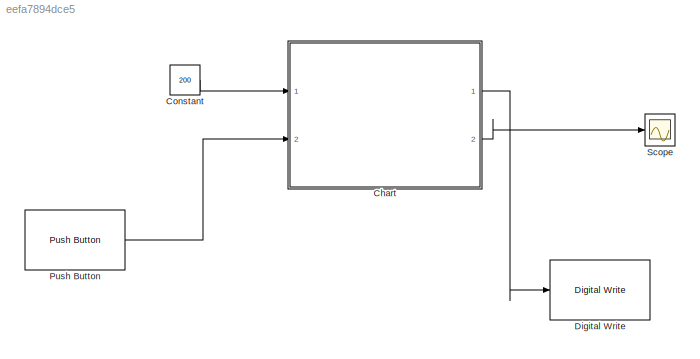
MODEL slx_eefa7894dce5
KIND model
CONFIG AbsTol = auto
CONFIG EnableMultiTasking = on
CONFIG FixedStep = 1e-3
CONFIG MaxStep = auto
CONFIG MinStep = auto
CONFIG RelTol = 1e-3
CONFIG SampleTimeConstraint = Unconstrained
CONFIG Solver = FixedStepAuto
CONFIG SolverName = FixedStepAuto
CONFIG StartTime = 0.0
CONFIG StopTime = 10.0
WORKSPACE source: mxarray member
WORKSPACE PWM_duty_cycle = 5
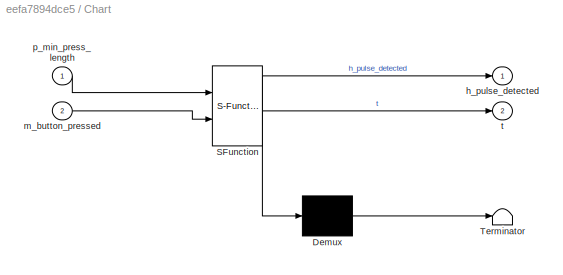
BLOCK [SubSystem] Chart
  ErrorFcn = Stateflow.Translate.translate
  PermitHierarchicalResolution = ExplicitOnly
  Ports = [2, 2]
  RequestExecContextInheritance = off
  SFBlockType = Chart
  TreatAsAtomicUnit = on
BLOCK [Demux] Chart/ Demux 
  Outputs = 1
  Ports = [1, 1]
BLOCK [S-Function] Chart/ SFunction 
  EnableBusSupport = on
  FunctionName = sf_sfun
  PortCounts = [2 3]
  Ports = [2, 3]
  SFcnIsStateOwnerBlock = off
  SFunctionDeploymentMode = off
  Tag = Stateflow S-Function 3
BLOCK [Terminator] Chart/ Terminator 
BLOCK [Outport] Chart/h_pulse_detected
BLOCK [Inport] Chart/m_button_pressed
  Port = 2
BLOCK [Inport] Chart/p_min_press_length
BLOCK [Outport] Chart/t
  Port = 2
BLOCK [Constant] Constant
  Value = 200
BLOCK [Reference] Digital Write  REF=frdmk64flib/Digital Write
  Ports = [1]
  SourceBlock = frdmk64flib/Digital Write
  SourceProductBaseCode = EC_FRDM_K64F
  SourceType = freedomk64f.DigitalWrite
BLOCK [Reference] Push Button  REF=frdmk64flib/Push Button
  Ports = [0, 1]
  SourceBlock = frdmk64flib/Push Button
  SourceProductBaseCode = EC_FRDM_K64F
  SourceType = freedomk64f.PushButton
BLOCK [Scope] Scope
  Floating = off
  NumInputPorts = 1
  Ports = [1]
  ScopeSpecificationString = Simulink.scopes.TimeScopeBlockCfg('CurrentConfiguration', extmgr.ConfigurationSet(extmgr.Configuration('Core','General UI',true),extmgr.Configuration('Core','Source UI',true),extmgr.Configuration('Sources','WiredSimulink',true),extmgr.Configuration('Visuals','Time Domain',true,'SerializedDisplays',{struct('MinYLimReal','-20.125','MaxYLimReal','181.125','YLabelReal','','MinYLimMag','0.00000','MaxYL...<+1318ch>
LINE Chart:1 -> Digital Write:1
LINE Chart:2 -> Scope:1
LINE Constant:1 -> Chart:1
LINE Push Button:1 -> Chart:2
CHART Chart states=4 transitions=6
  STATE_LABEL 'INVALID_PULSE'
  STATE_LABEL 'IDLE\nentry:\nh_pulse_detected = 0;'
  STATE_LABEL 'BUTTON_DOWN\nexit:\nt = elapsed(msec);'
  STATE_LABEL 'VALID_PULSE\nentry:\nh_pulse_detected = 1;\nt = t + elapsed(msec)'
CHART  states=0 transitions=0
